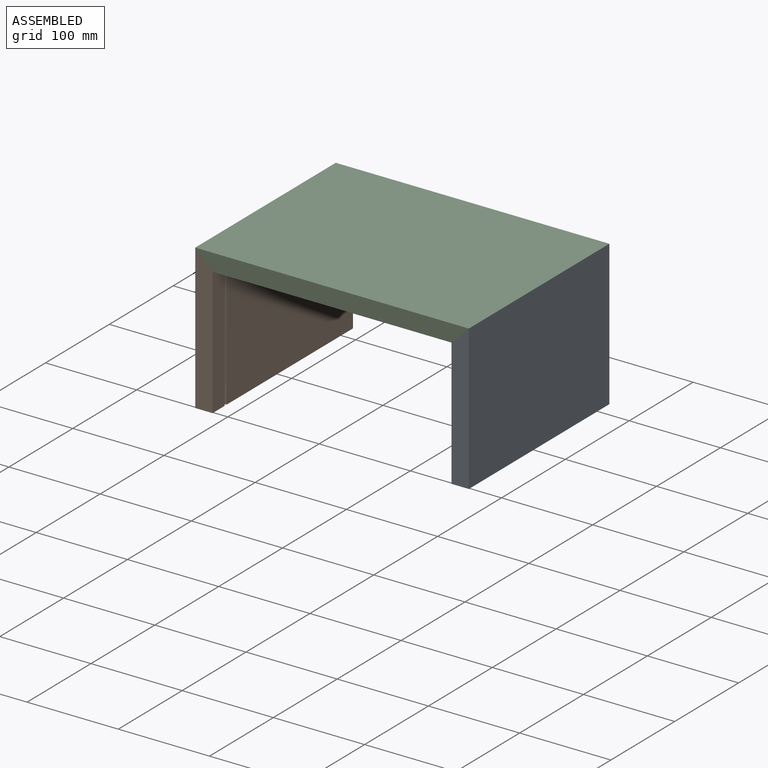
[diagram: assembled view]
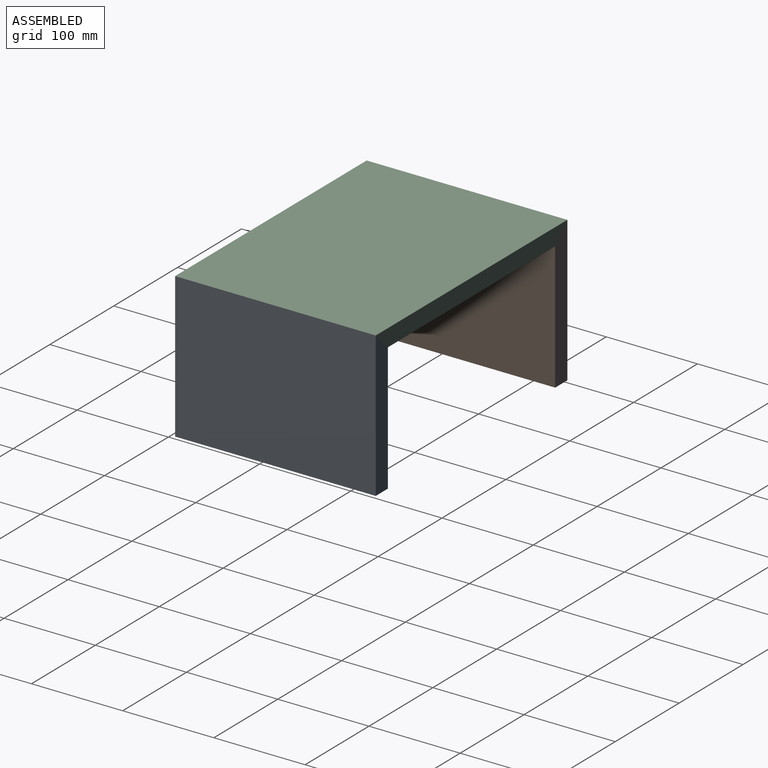
[diagram: assembled view, second angle]
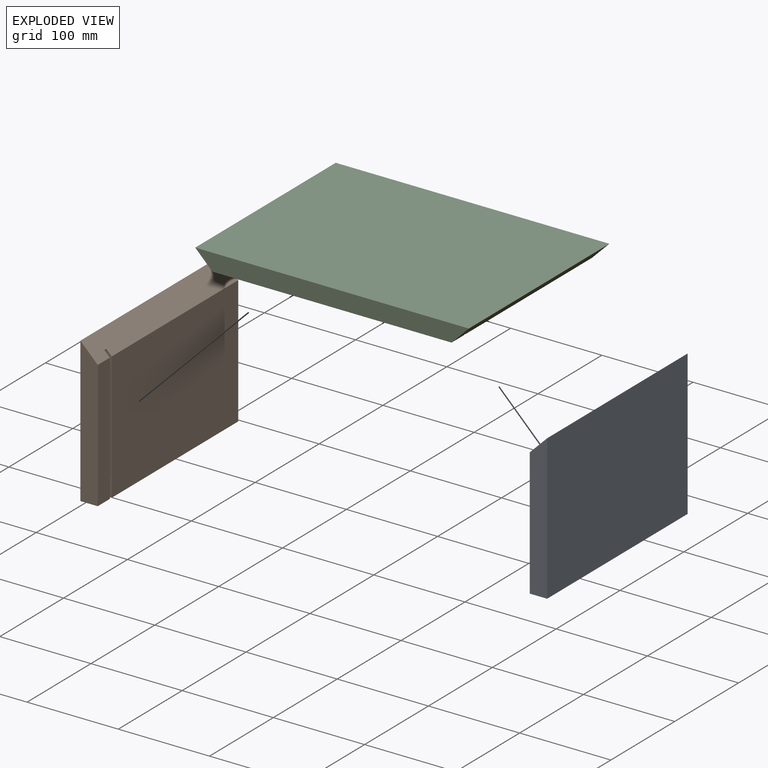
[diagram: exploded view]
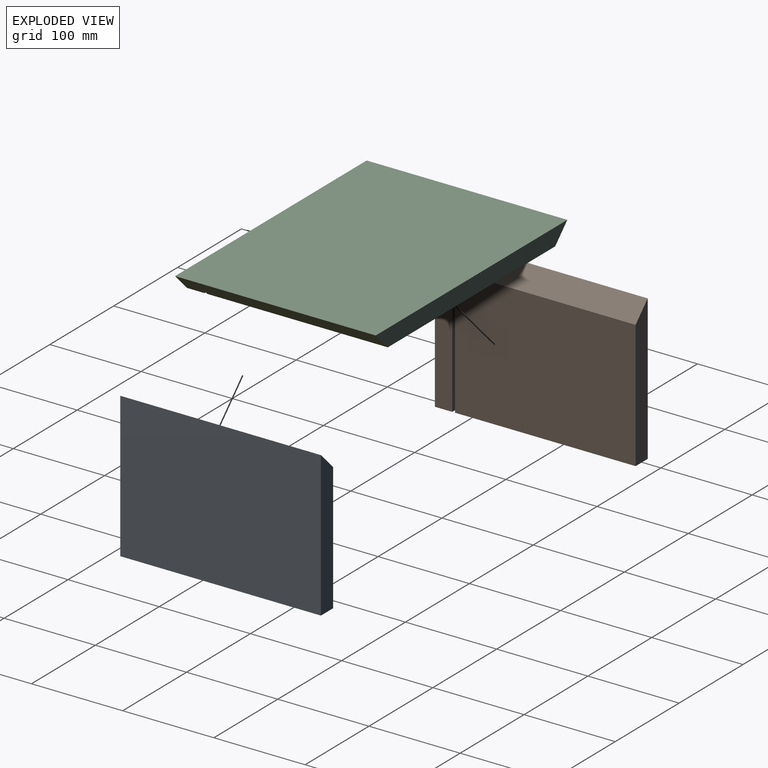
[diagram: exploded view, second angle]
ASSEMBLY  parts=3 mates=2
PART A: 10 faces, bbox 19x220x159 mm
  f0: plane 140x19mm, normal (-1,0,0), area 2660mm2, adj f1,f3,f6,f9
  f1: plane 220x19mm, normal (-0.71,0,0.71), area 5886mm2, adj f0,f2,f4,f5,f6,f7,f8,f9
  f2: plane 198x140mm, normal (-1,0,0), area 27720mm2, adj f1,f3,f5,f7
  f3: plane 220x19mm, normal (0,0,-1), area 4162mm2, adj f0,f2,f4,f5,f6,f7,f8,f9
  f4: plane 220x159mm, normal (1,0,0), area 34980mm2, adj f1,f3,f5,f6
  f5: plane 159x19mm, normal (0,1,0), area 2840.5mm2, adj f1,f2,f3,f4
  f6: plane 159x19mm, normal (0,-1,0), area 2840.5mm2, adj f0,f1,f3,f4
  f7: plane 146x6mm, normal (0,-1,0), area 858mm2, adj f1,f2,f3,f8
  f8: plane 146x3mm, normal (-1,0,0), area 438mm2, adj f1,f3,f7,f9
  f9: plane 146x6mm, normal (0,1,0), area 858mm2, adj f0,f1,f3,f8
PART B: 10 faces, bbox 19x220x159 mm
  f0: plane 140x19mm, normal (1,0,0), area 2660mm2, adj f1,f2,f6,f8
  f1: plane 220x19mm, normal (0.71,0,0.71), area 5886mm2, adj f0,f3,f4,f5,f6,f7,f8,f9
  f2: plane 220x19mm, normal (0,0,-1), area 4162mm2, adj f0,f3,f4,f5,f6,f7,f8,f9
  f3: plane 198x140mm, normal (1,0,0), area 27720mm2, adj f1,f2,f5,f7
  f4: plane 220x159mm, normal (-1,0,0), area 34980mm2, adj f1,f2,f5,f6
  f5: plane 159x19mm, normal (0,1,0), area 2840.5mm2, adj f1,f2,f3,f4
  f6: plane 159x19mm, normal (0,-1,0), area 2840.5mm2, adj f0,f1,f2,f4
  f7: plane 146x6mm, normal (0,-1,0), area 858mm2, adj f1,f2,f3,f9
  f8: plane 146x6mm, normal (0,1,0), area 858mm2, adj f0,f1,f2,f9
  f9: plane 146x3mm, normal (1,0,0), area 438mm2, adj f1,f2,f7,f8
PART C: 10 faces, bbox 300x220x19 mm
  f0: plane 262x198mm, normal (0,0,-1), area 51876mm2, adj f1,f3,f5,f7
  f1: plane 220x19mm, normal (-0.71,0,-0.71), area 5886mm2, adj f0,f2,f4,f5,f6,f7,f8,f9
  f2: plane 262x19mm, normal (0,0,-1), area 4978mm2, adj f1,f3,f6,f8
  f3: plane 220x19mm, normal (0.71,0,-0.71), area 5886mm2, adj f0,f2,f4,f5,f6,f7,f8,f9
  f4: plane 300x220mm, normal (0,0,1), area 66000mm2, adj f1,f3,f5,f6
  f5: plane 300x19mm, normal (0,1,0), area 5339mm2, adj f0,f1,f3,f4
  f6: plane 300x19mm, normal (0,-1,0), area 5339mm2, adj f1,f2,f3,f4
  f7: plane 274x6mm, normal (0,-1,0), area 1608mm2, adj f0,f1,f3,f9
  f8: plane 274x6mm, normal (0,1,0), area 1608mm2, adj f1,f2,f3,f9
  f9: plane 274x3mm, normal (0,0,-1), area 822mm2, adj f1,f3,f7,f8
PLACE A t=(308.58,66.73,17.44)mm
PLACE B t=(27.58,66.73,17.44)mm
PLACE C t=(27.58,66.73,176.44)mm
MATE planar C.f1 <-> B.f1  axis (-0.71,0,-0.71) through (37.05,177.12,166.97)mm
MATE planar A.f1 <-> C.f3  axis (-0.71,0,0.71) through (318.11,177.12,166.97)mm
